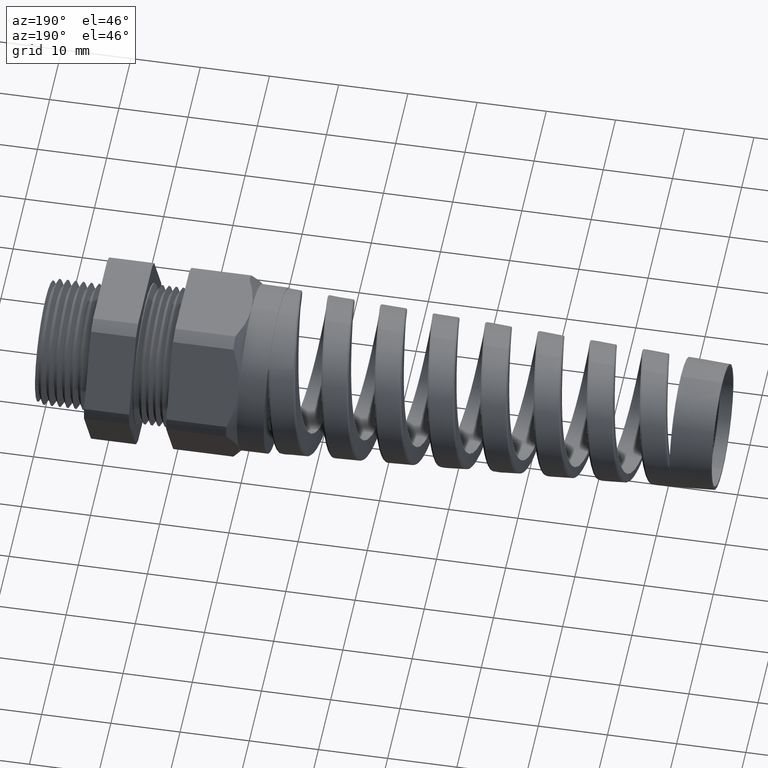
[diagram: clean part render]
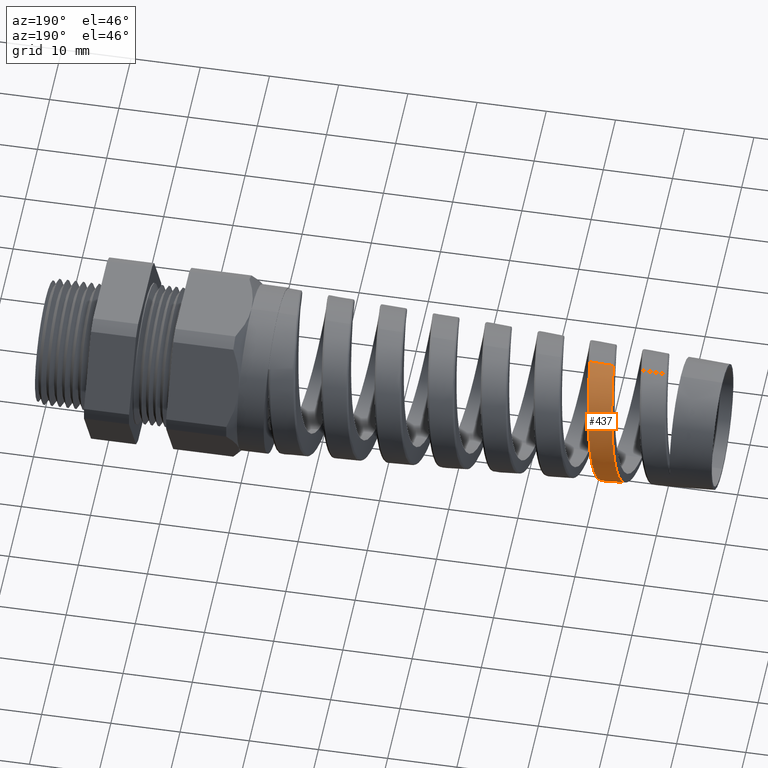
[diagram: same view with one face highlighted and labeled with its STEP entity id]
A machine part, auxiliary view. The second image highlights one B-rep face of the part: STEP entity #437.
In plain terms, the highlighted conical surface has half-angle 2.5 deg.
Its self-contained STEP definition (entity closure, byte-faithful):
#376 = EDGE_CURVE ( 'NONE', #447, #449, #1551, .T. ) ;
#377 = ORIENTED_EDGE ( 'NONE', *, *, #378, .T. ) ;
#378 = EDGE_CURVE ( 'NONE', #449, #379, #1541, .T. ) ;
#379 = VERTEX_POINT ( 'NONE', #1542 ) ;
#380 = ORIENTED_EDGE ( 'NONE', *, *, #381, .F. ) ;
#381 = EDGE_CURVE ( 'NONE', #446, #379, #1564, .T. ) ;
#437 = ADVANCED_FACE ( 'NONE', ( #1808 ), #1807, .T. ) ;
#438 = EDGE_LOOP ( 'NONE', ( #439, #448, #377, #380 ) ) ;
#439 = ORIENTED_EDGE ( 'NONE', *, *, #440, .T. ) ;
#440 = EDGE_CURVE ( 'NONE', #446, #447, #1853, .T. ) ;
#446 = VERTEX_POINT ( 'NONE', #1870 ) ;
#447 = VERTEX_POINT ( 'NONE', #1869 ) ;
#448 = ORIENTED_EDGE ( 'NONE', *, *, #376, .T. ) ;
#449 = VERTEX_POINT ( 'NONE', #1868 ) ;
#1520 = CARTESIAN_POINT ( 'NONE',  ( -3.156533989755619700, 0.3663193868148459400, 0.1266436646227125700 ) ) ;
#1521 = CARTESIAN_POINT ( 'NONE',  ( -3.151830524527470700, 0.3517150450751919100, 0.1618622757813145100 ) ) ;
#1522 = CARTESIAN_POINT ( 'NONE',  ( -3.150257355019045600, 0.3462453147701181600, 0.1734019989472380700 ) ) ;
#1523 = CARTESIAN_POINT ( 'NONE',  ( -3.147142088964673500, 0.3343217414718909800, 0.1956740857877811200 ) ) ;
#1524 = CARTESIAN_POINT ( 'NONE',  ( -3.144041718220013800, 0.3213656249164320600, 0.2172611406592249400 ) ) ;
#1525 = CARTESIAN_POINT ( 'NONE',  ( -3.140942911109710200, 0.3063749722573183000, 0.2374942663530458800 ) ) ;
#1526 = CARTESIAN_POINT ( 'NONE',  ( -3.137830086470299000, 0.2903536876574058200, 0.2570393309836012100 ) ) ;
#1527 = CARTESIAN_POINT ( 'NONE',  ( -3.136258215880644200, 0.2817777546905858600, 0.2665157761766650000 ) ) ;
#1528 = CARTESIAN_POINT ( 'NONE',  ( -3.131567037999373900, 0.2548439973741245000, 0.2934736335916486900 ) ) ;
#1529 = CARTESIAN_POINT ( 'NONE',  ( -3.128483617477714000, 0.2353862039412147600, 0.3094491999461662100 ) ) ;
#1530 = CARTESIAN_POINT ( 'NONE',  ( -3.123837775177855200, 0.2040154093923759500, 0.3304920510482497500 ) ) ;
#1531 = CARTESIAN_POINT ( 'NONE',  ( -3.122285857775008600, 0.1931918915737293200, 0.3370161856453060000 ) ) ;
#1532 = CARTESIAN_POINT ( 'NONE',  ( -3.119160201483197200, 0.1707919113646767000, 0.3490546195159917000 ) ) ;
#1533 = CARTESIAN_POINT ( 'NONE',  ( -3.117594079642624500, 0.1592670479303989200, 0.3545334122532266000 ) ) ;
#1534 = CARTESIAN_POINT ( 'NONE',  ( -3.112939939638203600, 0.1242999661106960500, 0.3691148744196063300 ) ) ;
#1535 = CARTESIAN_POINT ( 'NONE',  ( -3.109865773211545100, 0.1002561085565612100, 0.3764975372485076000 ) ) ;
#1536 = CARTESIAN_POINT ( 'NONE',  ( -3.105212223979086300, 0.06310006044428512200, 0.3840558255296859800 ) ) ;
#1537 = CARTESIAN_POINT ( 'NONE',  ( -3.103645429597438300, 0.05046183403613828400, 0.3859907489076578300 ) ) ;
#1538 = CARTESIAN_POINT ( 'NONE',  ( -3.100530100612382900, 0.02519660364287166000, 0.3885952203597536900 ) ) ;
#1539 = CARTESIAN_POINT ( 'NONE',  ( -3.098983521993914800, 0.01258676925495634500, 0.3892716360074439700 ) ) ;
#1540 = CARTESIAN_POINT ( 'NONE',  ( -3.097440470937366600, -1.909077587594534900E-014, 0.3893390070715283000 ) ) ;
#1541 = B_SPLINE_CURVE_WITH_KNOTS ( 'NONE', 3,
 ( #1540, #1539, #1538, #1537, #1536, #1535, #1534, #1533, #1532, #1531, #1530, #1529, #1528, #1527, #1526, #1525, #1524, #1523, #1522, #1521, #1520, #1591, #1590, #1589, #1588, #1587, #1586, #1585, #1584, #1583, #1582, #1581, #1580, #1579, #1578, #1577, #1576, #1575, #1574, #1573, #1572, #1571, #1570, #1569, #1568, #1567, #1566, #1565 ),
 .UNSPECIFIED., .F., .F.,
 ( 4, 2, 2, 2, 2, 2, 2, 2, 1, 2, 2, 2, 2, 2, 2, 2, 2, 2, 2, 1, 2, 2, 2, 2, 4 ),
 ( 0.4074287387672754200, 0.4084062930663606700, 0.4093838473654459700, 0.4113389559636165300, 0.4123165102627017700, 0.4132940645617870200, 0.4152491731599575700, 0.4162267274590428800, 0.4172042817581281300, 0.4181818360572134300, 0.4191593903562986800, 0.4211144989544692300, 0.4220920532535545300, 0.4230696075526397800, 0.4250247161508103300, 0.4260022704498956400, 0.4269798247489808900, 0.4289349333471514400, 0.4299124876462367400, 0.4308900419453220400, 0.4318675962444072900, 0.4328451505434926000, 0.4348002591416631500, 0.4367553677398337000, 0.4387104763380042500 ),
 .UNSPECIFIED. ) ;
#1542 = CARTESIAN_POINT ( 'NONE',  ( -3.247397378517552700, 1.475081032617646900E-015, -0.3827917470909326700 ) ) ;
#1543 = DIRECTION ( 'NONE',  ( 0.9990482215818576900, 5.341834311772762600E-018, 0.04361938736533631900 ) ) ;
#1544 = VECTOR ( 'NONE', #1543, 39.37007874015748100 ) ;
#1545 = CARTESIAN_POINT ( 'NONE',  ( -1.250000000000000000, 5.755839955992558400E-017, 0.4699999999999998600 ) ) ;
#1551 = LINE ( 'NONE', #1545, #1544 ) ;
#1561 = DIRECTION ( 'NONE',  ( 0.9990482215818576900, 0.0000000000000000000, -0.04361938736533631900 ) ) ;
#1562 = VECTOR ( 'NONE', #1561, 39.37007874015748100 ) ;
#1563 = CARTESIAN_POINT ( 'NONE',  ( -1.250000000000000000, 0.0000000000000000000, -0.4699999999999998600 ) ) ;
#1564 = LINE ( 'NONE', #1563, #1562 ) ;
#1565 = CARTESIAN_POINT ( 'NONE',  ( -3.247397378517552700, 1.475081032617646900E-015, -0.3827917470909326700 ) ) ;
#1566 = CARTESIAN_POINT ( 'NONE',  ( -3.244239876076584900, 0.02532331506235650800, -0.3829296066247411300 ) ) ;
#1567 = CARTESIAN_POINT ( 'NONE',  ( -3.241120288458145400, 0.05036742957378874400, -0.3805768888323822800 ) ) ;
#1568 = CARTESIAN_POINT ( 'NONE',  ( -3.234835832754630900, 0.09988943654843664100, -0.3709555731539404500 ) ) ;
#1569 = CARTESIAN_POINT ( 'NONE',  ( -3.231649590209835700, 0.1245252404972187100, -0.3635722892936671400 ) ) ;
#1570 = CARTESIAN_POINT ( 'NONE',  ( -3.225379216935018200, 0.1711353661579352000, -0.3444039445753774300 ) ) ;
#1571 = CARTESIAN_POINT ( 'NONE',  ( -3.222264989169035600, 0.1933613979068843900, -0.3326044237446046900 ) ) ;
#1572 = CARTESIAN_POINT ( 'NONE',  ( -3.217534882294804000, 0.2250407648825028500, -0.3115235862906497500 ) ) ;
#1573 = CARTESIAN_POINT ( 'NONE',  ( -3.215946279325415000, 0.2353311555702013200, -0.3039110010616936100 ) ) ;
#1574 = CARTESIAN_POINT ( 'NONE',  ( -3.212804052515495300, 0.2548979027514596300, -0.2878804204933264100 ) ) ;
#1575 = CARTESIAN_POINT ( 'NONE',  ( -3.209679397777844400, 0.2735715723768636900, -0.2709708281857483000 ) ) ;
#1576 = CARTESIAN_POINT ( 'NONE',  ( -3.206559351863506300, 0.2904878865178726100, -0.2523367953465015000 ) ) ;
#1577 = CARTESIAN_POINT ( 'NONE',  ( -3.203426580453229800, 0.3065147318278445600, -0.2328325846316417800 ) ) ;
#1578 = CARTESIAN_POINT ( 'NONE',  ( -3.201847193790794400, 0.3141128367315100800, -0.2226005774784397300 ) ) ;
#1579 = CARTESIAN_POINT ( 'NONE',  ( -3.197113071593253000, 0.3353117719941469100, -0.1908626826988949200 ) ) ;
#1580 = CARTESIAN_POINT ( 'NONE',  ( -3.194006326759377200, 0.3471541692699171000, -0.1686332068003294200 ) ) ;
#1581 = CARTESIAN_POINT ( 'NONE',  ( -3.189328739819612000, 0.3615902807259705500, -0.1337453467255052500 ) ) ;
#1582 = CARTESIAN_POINT ( 'NONE',  ( -3.187766742152731100, 0.3658437574099838200, -0.1218569215196067500 ) ) ;
#1583 = CARTESIAN_POINT ( 'NONE',  ( -3.184621723112655900, 0.3732032399577011100, -0.09754980992003516000 ) ) ;
#1584 = CARTESIAN_POINT ( 'NONE',  ( -3.183040671401694800, 0.3762960715780388500, -0.08514447792922361100 ) ) ;
#1585 = CARTESIAN_POINT ( 'NONE',  ( -3.178348071537773200, 0.3836484695826184500, -0.04795134125545662300 ) ) ;
#1586 = CARTESIAN_POINT ( 'NONE',  ( -3.175252300398261300, 0.3860877801517507700, -0.02291919435115854700 ) ) ;
#1587 = CARTESIAN_POINT ( 'NONE',  ( -3.170567980911242100, 0.3860624835963588100, 0.01497205598998062000 ) ) ;
#1588 = CARTESIAN_POINT ( 'NONE',  ( -3.168991736279992200, 0.3854282101675272600, 0.02772477166952163800 ) ) ;
#1589 = CARTESIAN_POINT ( 'NONE',  ( -3.165850556493246400, 0.3829079592066974600, 0.05301903529335556800 ) ) ;
#1590 = CARTESIAN_POINT ( 'NONE',  ( -3.164291497705990600, 0.3810342462231727200, 0.06551323330289347800 ) ) ;
#1591 = CARTESIAN_POINT ( 'NONE',  ( -3.159626763815148300, 0.3736254613189778900, 0.1025475587667762400 ) ) ;
#1804 = DIRECTION ( 'NONE',  ( 1.000000000000000000, 0.0000000000000000000, 0.0000000000000000000 ) ) ;
#1805 = CARTESIAN_POINT ( 'NONE',  ( -1.250000000000000000, 0.0000000000000000000, 0.0000000000000000000 ) ) ;
#1806 = AXIS2_PLACEMENT_3D ( 'NONE', #1805, #1804, #1854 ) ;
#1807 = CONICAL_SURFACE ( 'NONE', #1806, 0.4699999999999998600, 0.04363323129985855600 ) ;
#1808 = FACE_OUTER_BOUND ( 'NONE', #438, .T. ) ;
#1816 = CARTESIAN_POINT ( 'NONE',  ( -3.271376629838628900, 0.2864737982661399500, 0.2535523630322689100 ) ) ;
#1817 = CARTESIAN_POINT ( 'NONE',  ( -3.274465057462379000, 0.3021832203844457300, 0.2343632104651367200 ) ) ;
#1818 = CARTESIAN_POINT ( 'NONE',  ( -3.279120781652052700, 0.3228528161540776800, 0.2034472291109322700 ) ) ;
#1819 = CARTESIAN_POINT ( 'NONE',  ( -3.280676456608175400, 0.3292568740908255500, 0.1927840166940613400 ) ) ;
#1820 = CARTESIAN_POINT ( 'NONE',  ( -3.283810714162607200, 0.3410646166329624500, 0.1707230034525857900 ) ) ;
#1821 = CARTESIAN_POINT ( 'NONE',  ( -3.285385474825318800, 0.3464464846841129900, 0.1593490319341525600 ) ) ;
#1822 = CARTESIAN_POINT ( 'NONE',  ( -3.290063989034842900, 0.3607408531583353700, 0.1248681636146643100 ) ) ;
#1823 = CARTESIAN_POINT ( 'NONE',  ( -3.293155065890490000, 0.3679500498256165800, 0.1011724439744310600 ) ) ;
#1824 = CARTESIAN_POINT ( 'NONE',  ( -3.297837546249578400, 0.3752773352817541700, 0.06457590823506098600 ) ) ;
#1825 = CARTESIAN_POINT ( 'NONE',  ( -3.299414379541723900, 0.3771399778881440200, 0.05213391763663807000 ) ) ;
#1826 = CARTESIAN_POINT ( 'NONE',  ( -3.302555704585362000, 0.3796137207873444000, 0.02723179822727496800 ) ) ;
#1827 = CARTESIAN_POINT ( 'NONE',  ( -3.304115801147885300, 0.3802290996677772400, 0.01480798006381797500 ) ) ;
#1828 = CARTESIAN_POINT ( 'NONE',  ( -3.308787158584727300, 0.3802610043175560000, -0.02238118308046542800 ) ) ;
#1829 = CARTESIAN_POINT ( 'NONE',  ( -3.311888529089858800, 0.3778804095660985300, -0.04706514460249922000 ) ) ;
#1830 = CARTESIAN_POINT ( 'NONE',  ( -3.316610857263031500, 0.3705951080860716000, -0.08391141378915215100 ) ) ;
#1831 = CARTESIAN_POINT ( 'NONE',  ( -3.318189465377890300, 0.3675478408721112300, -0.09610409396043960400 ) ) ;
#1832 = CARTESIAN_POINT ( 'NONE',  ( -3.321318290454410500, 0.3603410591065830900, -0.1199083485171649100 ) ) ;
#1833 = CARTESIAN_POINT ( 'NONE',  ( -3.322876202368457000, 0.3561704265562633000, -0.1315803188839404800 ) ) ;
#1834 = CARTESIAN_POINT ( 'NONE',  ( -3.325993800510870000, 0.3467090483580367900, -0.1544677810723069900 ) ) ;
#1835 = CARTESIAN_POINT ( 'NONE',  ( -3.327553356753891700, 0.3414183117551889400, -0.1656832943301874100 ) ) ;
#1836 = CARTESIAN_POINT ( 'NONE',  ( -3.330688778707084500, 0.3296991820775012100, -0.1876487115939438300 ) ) ;
#1837 = CARTESIAN_POINT ( 'NONE',  ( -3.332273548329127300, 0.3232299419981502500, -0.1984561523300583100 ) ) ;
#1838 = CARTESIAN_POINT ( 'NONE',  ( -3.336998877305435800, 0.3023931969107666600, -0.2296371270919353700 ) ) ;
#1839 = CARTESIAN_POINT ( 'NONE',  ( -3.340108531317387700, 0.2866516749844267300, -0.2487832165685921500 ) ) ;
#1840 = CARTESIAN_POINT ( 'NONE',  ( -3.344802723779107400, 0.2603325858265520000, -0.2750863618091132200 ) ) ;
#1841 = CARTESIAN_POINT ( 'NONE',  ( -3.346372158687660000, 0.2511052260481095900, -0.2834486077269428000 ) ) ;
#1842 = CARTESIAN_POINT ( 'NONE',  ( -3.349536041567591700, 0.2317137569857424800, -0.2993344940050554600 ) ) ;
#1843 = CARTESIAN_POINT ( 'NONE',  ( -3.351117109338488400, 0.2216291810396147400, -0.3067865867192557400 ) ) ;
#1844 = CARTESIAN_POINT ( 'NONE',  ( -3.355824678933495800, 0.1905947345826841900, -0.3274430645303976200 ) ) ;
#1845 = CARTESIAN_POINT ( 'NONE',  ( -3.358938911234401000, 0.1687300067496921300, -0.3390809977883617000 ) ) ;
#1846 = CARTESIAN_POINT ( 'NONE',  ( -3.363664547250135900, 0.1341647350287269700, -0.3533043750523312000 ) ) ;
#1847 = CARTESIAN_POINT ( 'NONE',  ( -3.365257137349651800, 0.1222807369976639200, -0.3575188329042904300 ) ) ;
#1848 = CARTESIAN_POINT ( 'NONE',  ( -3.368415698853696000, 0.09835931882425356900, -0.3646828743529006400 ) ) ;
#1849 = CARTESIAN_POINT ( 'NONE',  ( -3.369985344539607300, 0.08629731242489141500, -0.3676503352895428300 ) ) ;
#1850 = CARTESIAN_POINT ( 'NONE',  ( -3.374688541477187000, 0.04981707990545611300, -0.3747501506026089700 ) ) ;
#1851 = CARTESIAN_POINT ( 'NONE',  ( -3.377816014067379000, 0.02510746373570928900, -0.3770975464899855600 ) ) ;
#1852 = CARTESIAN_POINT ( 'NONE',  ( -3.380997363726423900, 4.050823576031349700E-017, -0.3769586457641500600 ) ) ;
#1853 = B_SPLINE_CURVE_WITH_KNOTS ( 'NONE', 3,
 ( #1852, #1851, #1850, #1849, #1848, #1847, #1846, #1845, #1844, #1843, #1842, #1841, #1840, #1839, #1838, #1837, #1836, #1835, #1834, #1833, #1832, #1831, #1830, #1829, #1828, #1827, #1826, #1825, #1824, #1823, #1822, #1821, #1820, #1819, #1818, #1817, #1816, #1890, #1889, #1888, #1887, #1886, #1885, #1884, #1883, #1882, #1881, #1880, #1879, #1878, #1877 ),
 .UNSPECIFIED., .F., .F.,
 ( 4, 2, 2, 2, 2, 2, 2, 2, 2, 2, 2, 2, 2, 2, 2, 2, 2, 2, 2, 2, 1, 2, 2, 2, 2, 4 ),
 ( 0.04680803085694418300, 0.04873595949080370600, 0.04969992380773346300, 0.05066388812466322100, 0.05259181675852273700, 0.05355578107545249500, 0.05451974539238225300, 0.05644767402624176200, 0.05741163834317152000, 0.05837560266010127800, 0.05933956697703103600, 0.06030353129396079400, 0.06223145992782029600, 0.06319542424475005400, 0.06415938856167981200, 0.06608731719553932700, 0.06705128151246908500, 0.06801524582939882900, 0.06994317446325834500, 0.07090713878018810300, 0.07187110309711786100, 0.07283506741404761900, 0.07379903173097737700, 0.07572696036483689300, 0.07669092468176665100, 0.07765488899869640900 ),
 .UNSPECIFIED. ) ;
#1854 = DIRECTION ( 'NONE',  ( 0.0000000000000000000, 0.0000000000000000000, -1.000000000000000000 ) ) ;
#1868 = CARTESIAN_POINT ( 'NONE',  ( -3.097440470937366600, -1.909077587594534900E-014, 0.3893390070715283000 ) ) ;
#1869 = CARTESIAN_POINT ( 'NONE',  ( -3.230954308911285500, 8.646855417543719200E-013, 0.3835096670142526000 ) ) ;
#1870 = CARTESIAN_POINT ( 'NONE',  ( -3.380997363726423900, 4.050823576031349700E-017, -0.3769586457641500600 ) ) ;
#1877 = CARTESIAN_POINT ( 'NONE',  ( -3.230954308911285500, 8.646855417543719200E-013, 0.3835096670142526000 ) ) ;
#1878 = CARTESIAN_POINT ( 'NONE',  ( -3.232503120496735600, 0.01243603294953072300, 0.3834420444400162300 ) ) ;
#1879 = CARTESIAN_POINT ( 'NONE',  ( -3.234066688174455500, 0.02498303794071859600, 0.3827637795745335600 ) ) ;
#1880 = CARTESIAN_POINT ( 'NONE',  ( -3.237187284812220500, 0.04989472138290580000, 0.3801819702626352800 ) ) ;
#1881 = CARTESIAN_POINT ( 'NONE',  ( -3.238736654228241200, 0.06219667405841380900, 0.3782915578758099300 ) ) ;
#1882 = CARTESIAN_POINT ( 'NONE',  ( -3.243374194759693900, 0.09865133818667480600, 0.3708733288329015800 ) ) ;
#1883 = CARTESIAN_POINT ( 'NONE',  ( -3.246451502581742400, 0.1223570584778398800, 0.3636145961261579900 ) ) ;
#1884 = CARTESIAN_POINT ( 'NONE',  ( -3.251134331643126700, 0.1569846255571783500, 0.3491659846532564300 ) ) ;
#1885 = CARTESIAN_POINT ( 'NONE',  ( -3.252704238443537800, 0.1683505224437203700, 0.3437516309561197700 ) ) ;
#1886 = CARTESIAN_POINT ( 'NONE',  ( -3.255812313490095400, 0.1902735295810271100, 0.3319627337726018300 ) ) ;
#1887 = CARTESIAN_POINT ( 'NONE',  ( -3.258906131304975400, 0.2115159922011080100, 0.3191635739461399200 ) ) ;
#1888 = CARTESIAN_POINT ( 'NONE',  ( -3.262000282688772000, 0.2314139446301624600, 0.3043748901555257100 ) ) ;
#1889 = CARTESIAN_POINT ( 'NONE',  ( -3.265109341449063100, 0.2506290144766379300, 0.2885790228863258100 ) ) ;
#1890 = CARTESIAN_POINT ( 'NONE',  ( -3.266679030296324000, 0.2599381111289880700, 0.2801332479486898200 ) ) ;